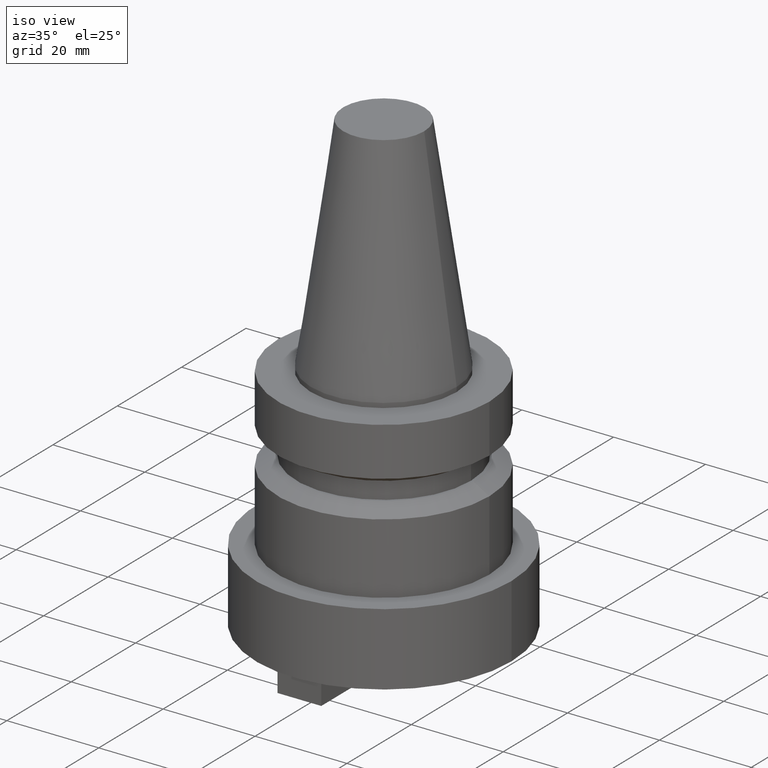
[diagram: clean part render]
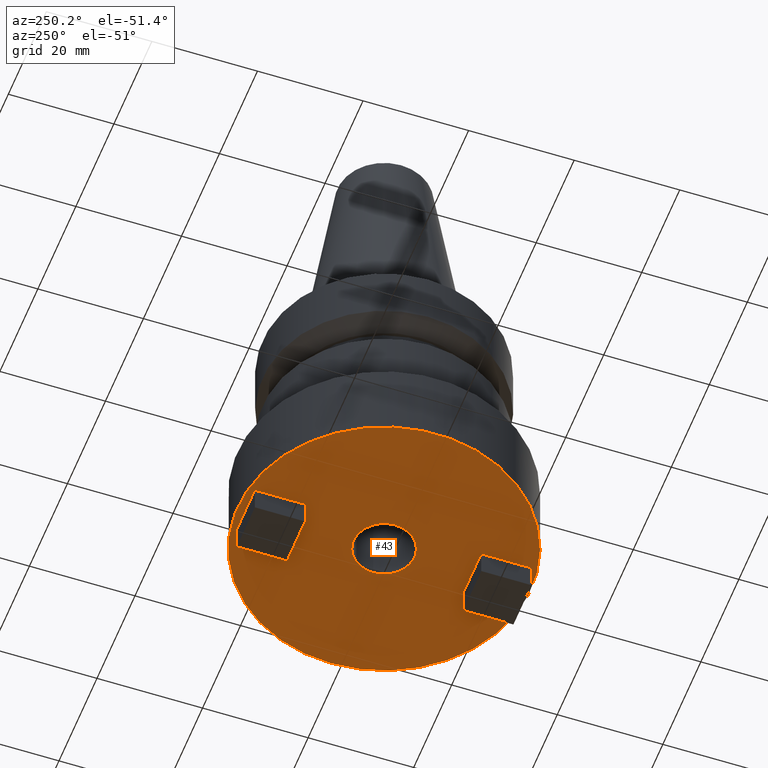
[diagram: tour spotlight — one face highlighted and labeled with its STEP entity id]
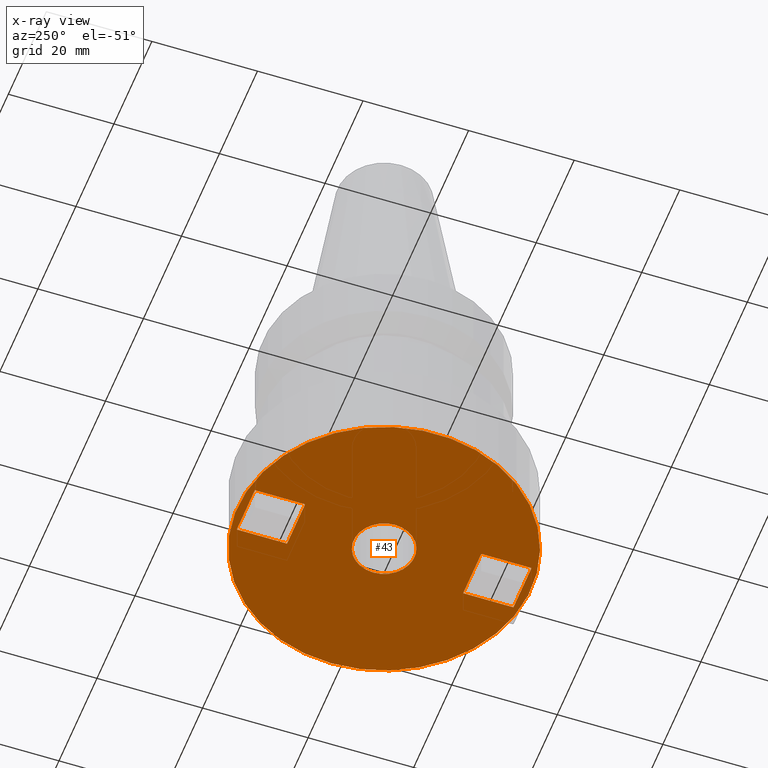
[diagram: x-ray of the same camera — body ghosted, this tour face saturated]
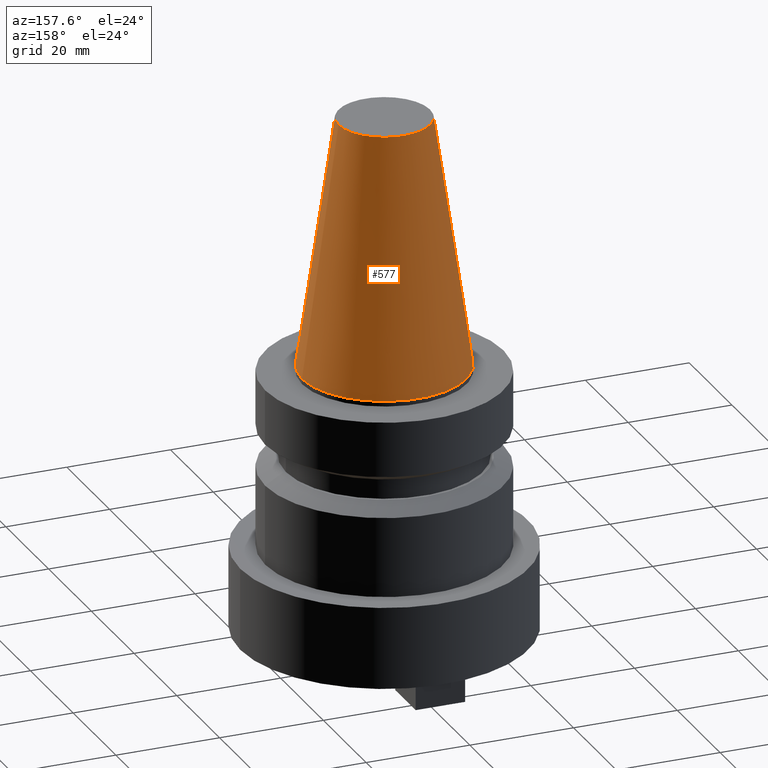
[diagram: tour spotlight — one face highlighted and labeled with its STEP entity id]
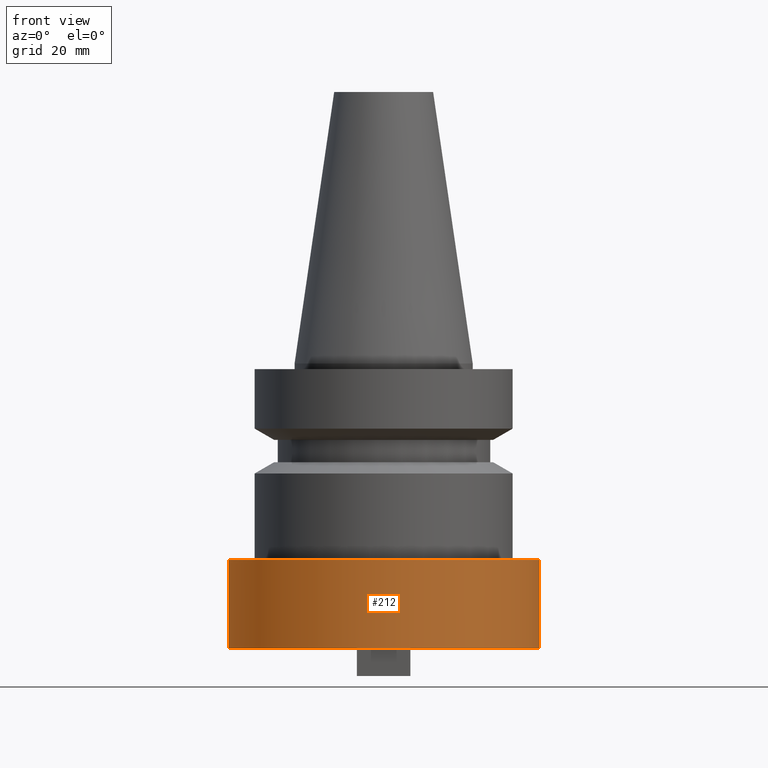
[diagram: tour spotlight — one face highlighted and labeled with its STEP entity id]
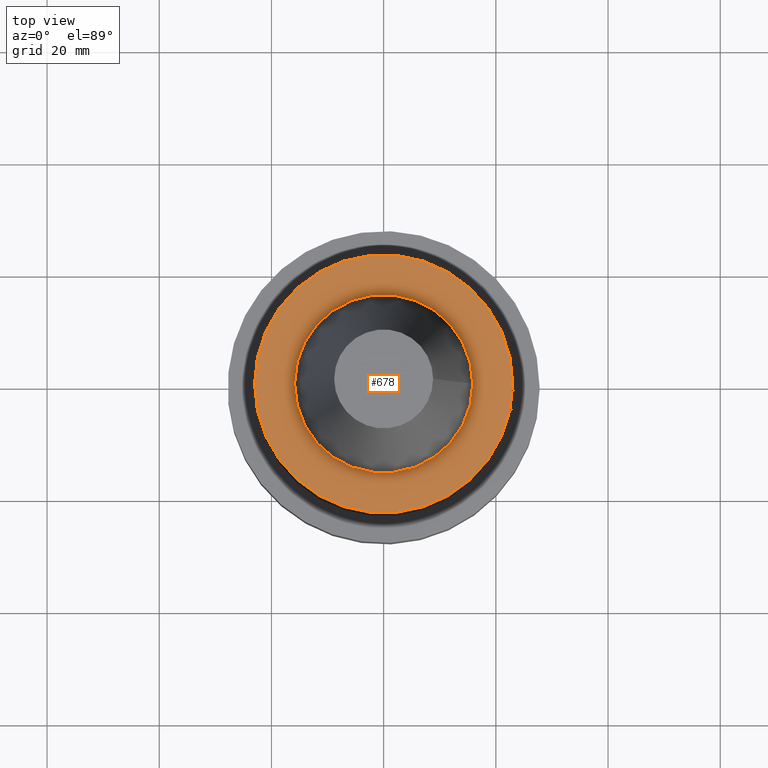
[diagram: tour spotlight — one face highlighted and labeled with its STEP entity id]
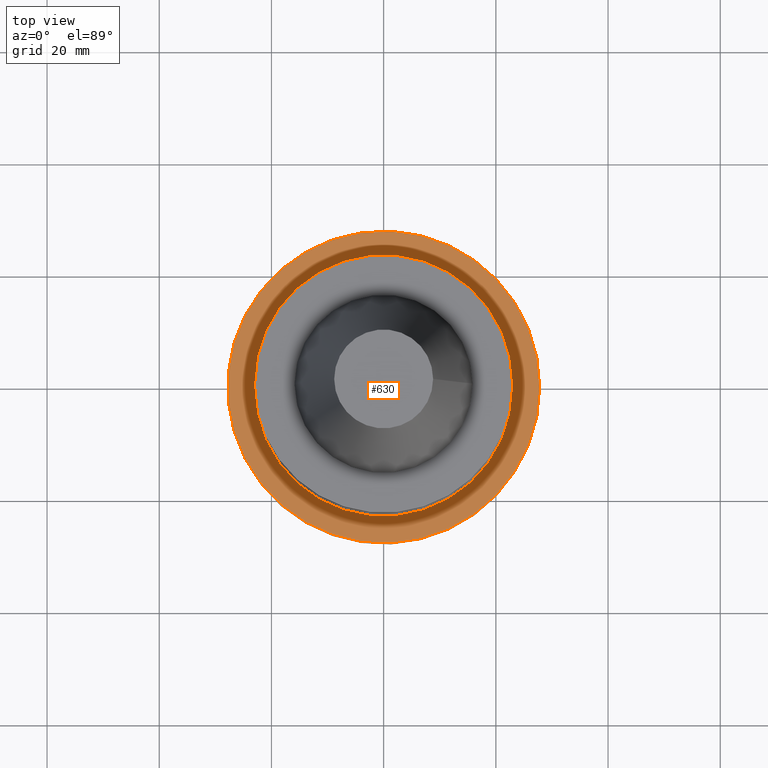
[diagram: tour spotlight — one face highlighted and labeled with its STEP entity id]
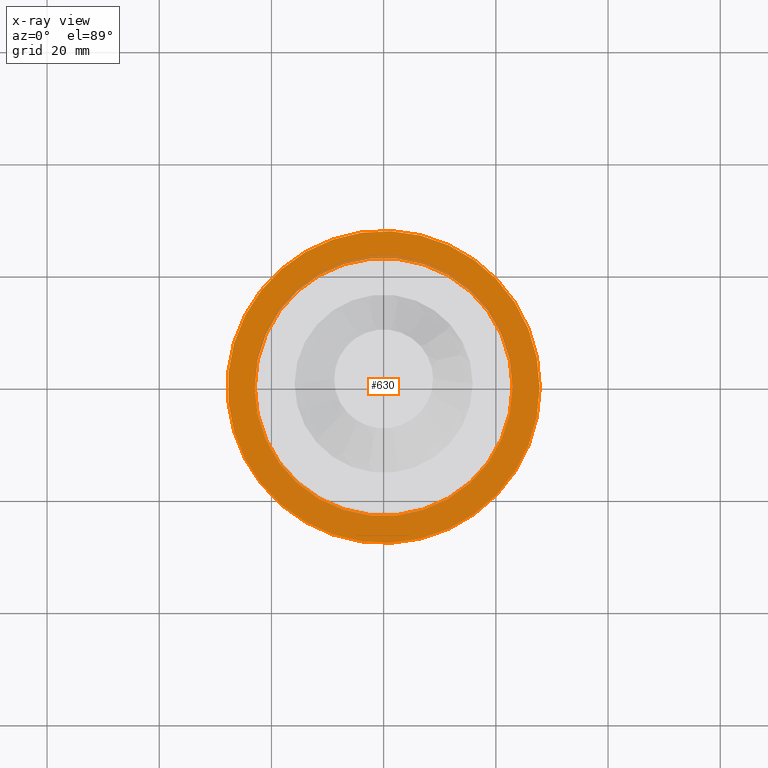
[diagram: x-ray of the same camera — body ghosted, this tour face saturated]
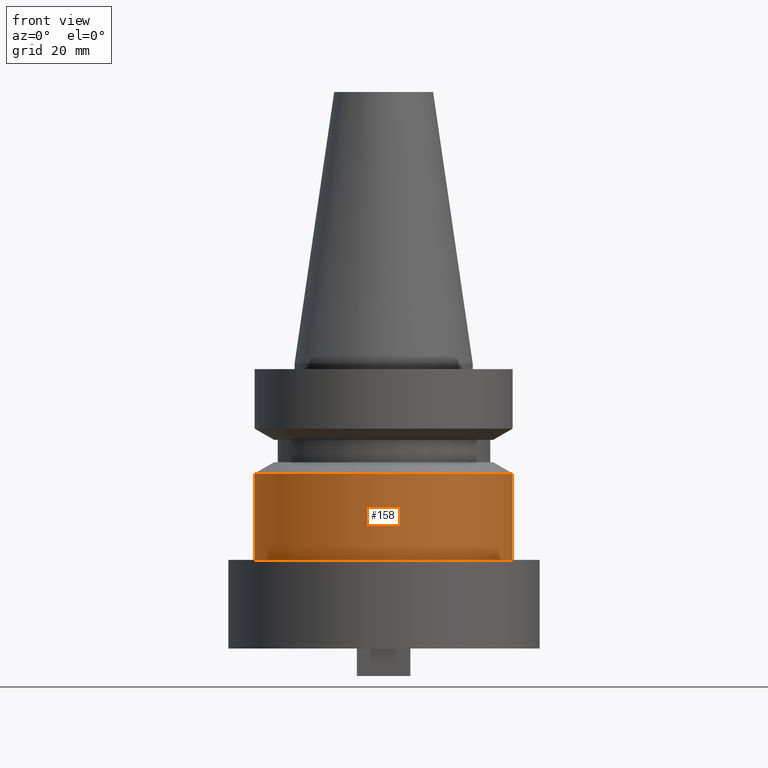
[diagram: tour spotlight — one face highlighted and labeled with its STEP entity id]
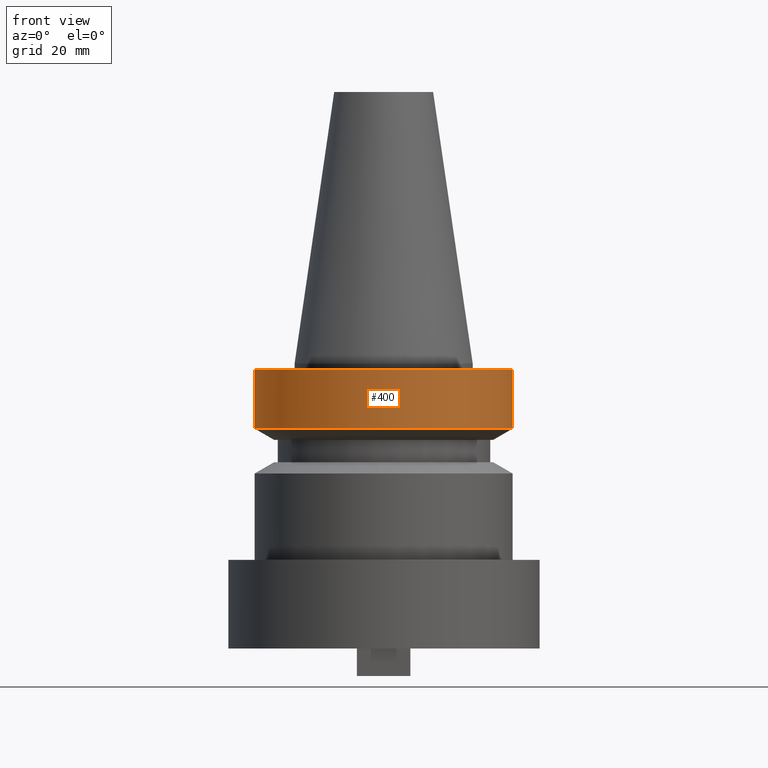
[diagram: tour spotlight — one face highlighted and labeled with its STEP entity id]
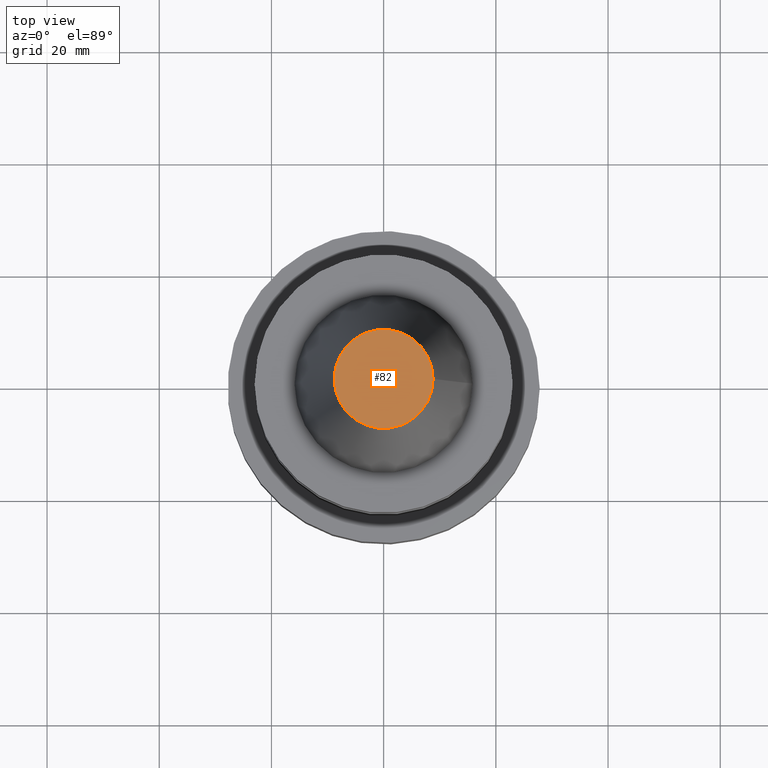
[diagram: tour spotlight — one face highlighted and labeled with its STEP entity id]
A machine part: a face-by-face anatomy tour. The part has 26 B-rep faces; the first image is the clean iso view, then the 8 largest visible faces are spotlighted one at a time (largest first), each with its STEP entity span.

Face 1 — auxiliary view, entity #43. An x-ray twin of the same camera follows (body ghosted, this face saturated) — the face is partly hidden behind the body. In plain terms, the highlighted planar face has unit normal (0, -0, 1).
Definition (entity closure, byte-faithful):
#3 = VERTEX_POINT ( 'NONE', #572 ) ;
#9 = AXIS2_PLACEMENT_3D ( 'NONE', #487, #491, #226 ) ;
#13 = CARTESIAN_POINT ( 'NONE',  ( -4.765000000000003233, 16.67999999999999972, -50.79999999999999716 ) ) ;
#14 = FACE_BOUND ( 'NONE', #294, .T. ) ;
#18 = EDGE_CURVE ( 'NONE', #672, #250, #177, .T. ) ;
#29 = DIRECTION ( 'NONE',  ( -9.101382350350614961E-17, -1.000000000000000000, 0.000000000000000000 ) ) ;
#31 = DIRECTION ( 'NONE',  ( 9.101382350350512656E-17, -1.000000000000000000, 0.000000000000000000 ) ) ;
#43 = ADVANCED_FACE ( 'NONE', ( #14, #430, #168, #165 ), #483, .F. ) ;
#54 = CIRCLE ( 'NONE', #310, 5.764999999999999680 ) ;
#69 = CARTESIAN_POINT ( 'NONE',  ( 4.764999999999993463, 4.336808689942012806E-16, -50.79999999999999716 ) ) ;
#72 = EDGE_CURVE ( 'NONE', #569, #503, #222, .T. ) ;
#74 = CARTESIAN_POINT ( 'NONE',  ( -1.908377851221493419E-14, -26.20999999999997954, -50.79999999999999716 ) ) ;
#78 = CARTESIAN_POINT ( 'NONE',  ( -4.765000000000003233, -26.20999999999997598, -50.79999999999999716 ) ) ;
#95 = CARTESIAN_POINT ( 'NONE',  ( 6.072442304153862371E-15, 16.67999999999999972, -50.79999999999999716 ) ) ;
#105 = CARTESIAN_POINT ( 'NONE',  ( 1.761008268204623874E-13, -16.68000000000003524, -50.79999999999999716 ) ) ;
#112 = DIRECTION ( 'NONE',  ( -1.000000000000000000, -1.055760352640659537E-14, 0.000000000000000000 ) ) ;
#113 = DIRECTION ( 'NONE',  ( -9.101382350350508958E-17, -1.000000000000000000, 0.000000000000000000 ) ) ;
#114 = DIRECTION ( 'NONE',  ( -0.000000000000000000, -0.000000000000000000, 1.000000000000000000 ) ) ;
#137 = VERTEX_POINT ( 'NONE', #149 ) ;
#140 = EDGE_CURVE ( 'NONE', #227, #503, #293, .T. ) ;
#144 = CARTESIAN_POINT ( 'NONE',  ( 4.764999999999985469, -2.168404344971001768E-15, -50.79999999999999716 ) ) ;
#148 = ORIENTED_EDGE ( 'NONE', *, *, #648, .T. ) ;
#149 = CARTESIAN_POINT ( 'NONE',  ( 5.764999999999999680, 0.000000000000000000, -50.79999999999999716 ) ) ;
#165 = FACE_BOUND ( 'NONE', #214, .T. ) ;
#168 = FACE_OUTER_BOUND ( 'NONE', #624, .T. ) ;
#177 = LINE ( 'NONE', #74, #645 ) ;
#184 = VECTOR ( 'NONE', #507, 1000.000000000000000 ) ;
#189 = CARTESIAN_POINT ( 'NONE',  ( -4.765000000000000568, 4.336808689942069012E-16, -50.79999999999999716 ) ) ;
#190 = VERTEX_POINT ( 'NONE', #347 ) ;
#191 = CARTESIAN_POINT ( 'NONE',  ( 4.764999999999996128, -26.20999999999998309, -50.79999999999999716 ) ) ;
#192 = EDGE_CURVE ( 'NONE', #3, #227, #343, .T. ) ;
#207 = VECTOR ( 'NONE', #562, 1000.000000000000000 ) ;
#214 = EDGE_LOOP ( 'NONE', ( #633, #308, #403, #223 ) ) ;
#220 = EDGE_CURVE ( 'NONE', #190, #250, #549, .T. ) ;
#222 = LINE ( 'NONE', #545, #523 ) ;
#223 = ORIENTED_EDGE ( 'NONE', *, *, #72, .T. ) ;
#226 = DIRECTION ( 'NONE',  ( 1.000000000000000000, 0.000000000000000000, 0.000000000000000000 ) ) ;
#227 = VERTEX_POINT ( 'NONE', #557 ) ;
#242 = CARTESIAN_POINT ( 'NONE',  ( 4.764999999999995239, -16.67999999999998906, -50.79999999999999716 ) ) ;
#250 = VERTEX_POINT ( 'NONE', #78 ) ;
#255 = DIRECTION ( 'NONE',  ( -1.000000000000000000, 3.640552940140203583E-16, 0.000000000000000000 ) ) ;
#265 = CARTESIAN_POINT ( 'NONE',  ( 0.000000000000000000, 0.000000000000000000, -50.79999999999999716 ) ) ;
#267 = CARTESIAN_POINT ( 'NONE',  ( 9.541889256107473405E-15, 26.21000000000000085, -50.79999999999999716 ) ) ;
#290 = CARTESIAN_POINT ( 'NONE',  ( 27.80000000000000071, 0.000000000000000000, -50.79999999999999716 ) ) ;
#293 = LINE ( 'NONE', #95, #184 ) ;
#294 = EDGE_LOOP ( 'NONE', ( #348, #615, #449, #338 ) ) ;
#300 = EDGE_CURVE ( 'NONE', #3, #569, #639, .T. ) ;
#302 = VECTOR ( 'NONE', #31, 1000.000000000000000 ) ;
#308 = ORIENTED_EDGE ( 'NONE', *, *, #192, .F. ) ;
#310 = AXIS2_PLACEMENT_3D ( 'NONE', #376, #599, #381 ) ;
#316 = LINE ( 'NONE', #105, #536 ) ;
#320 = CIRCLE ( 'NONE', #335, 27.80000000000000071 ) ;
#321 = CARTESIAN_POINT ( 'NONE',  ( -4.765000000000002345, 26.21000000000000441, -50.79999999999999716 ) ) ;
#335 = AXIS2_PLACEMENT_3D ( 'NONE', #265, #114, #671 ) ;
#338 = ORIENTED_EDGE ( 'NONE', *, *, #556, .F. ) ;
#343 = LINE ( 'NONE', #144, #207 ) ;
#347 = CARTESIAN_POINT ( 'NONE',  ( -4.765000000000002345, -16.68000000000008498, -50.79999999999999716 ) ) ;
#348 = ORIENTED_EDGE ( 'NONE', *, *, #451, .T. ) ;
#360 = EDGE_CURVE ( 'NONE', #395, #395, #320, .T. ) ;
#376 = CARTESIAN_POINT ( 'NONE',  ( 0.000000000000000000, 0.000000000000000000, -50.79999999999999716 ) ) ;
#381 = DIRECTION ( 'NONE',  ( 1.000000000000000000, 0.000000000000000000, 0.000000000000000000 ) ) ;
#392 = LINE ( 'NONE', #69, #302 ) ;
#395 = VERTEX_POINT ( 'NONE', #290 ) ;
#403 = ORIENTED_EDGE ( 'NONE', *, *, #300, .T. ) ;
#425 = DIRECTION ( 'NONE',  ( -1.000000000000000000, 7.281105880280407166E-16, 0.000000000000000000 ) ) ;
#430 = FACE_BOUND ( 'NONE', #550, .T. ) ;
#449 = ORIENTED_EDGE ( 'NONE', *, *, #18, .F. ) ;
#451 = EDGE_CURVE ( 'NONE', #573, #190, #316, .T. ) ;
#483 = PLANE ( 'NONE',  #9 ) ;
#487 = CARTESIAN_POINT ( 'NONE',  ( 0.000000000000000000, 27.80000000000000071, -50.79999999999999716 ) ) ;
#491 = DIRECTION ( 'NONE',  ( 0.000000000000000000, -0.000000000000000000, 1.000000000000000000 ) ) ;
#498 = ORIENTED_EDGE ( 'NONE', *, *, #360, .F. ) ;
#503 = VERTEX_POINT ( 'NONE', #13 ) ;
#507 = DIRECTION ( 'NONE',  ( -1.000000000000000000, 3.640552940140205062E-16, 0.000000000000000000 ) ) ;
#523 = VECTOR ( 'NONE', #113, 1000.000000000000000 ) ;
#536 = VECTOR ( 'NONE', #112, 1000.000000000000000 ) ;
#545 = CARTESIAN_POINT ( 'NONE',  ( -4.765000000000005009, 4.336808689942022666E-16, -50.79999999999999716 ) ) ;
#549 = LINE ( 'NONE', #189, #616 ) ;
#550 = EDGE_LOOP ( 'NONE', ( #148 ) ) ;
#556 = EDGE_CURVE ( 'NONE', #573, #672, #392, .T. ) ;
#557 = CARTESIAN_POINT ( 'NONE',  ( 4.764999999999993463, 16.67999999999999972, -50.79999999999999716 ) ) ;
#562 = DIRECTION ( 'NONE',  ( -4.550691175175254109E-16, -1.000000000000000000, 0.000000000000000000 ) ) ;
#569 = VERTEX_POINT ( 'NONE', #321 ) ;
#572 = CARTESIAN_POINT ( 'NONE',  ( 4.764999999999997904, 26.21000000000000085, -50.79999999999999716 ) ) ;
#573 = VERTEX_POINT ( 'NONE', #242 ) ;
#599 = DIRECTION ( 'NONE',  ( -0.000000000000000000, -0.000000000000000000, 1.000000000000000000 ) ) ;
#615 = ORIENTED_EDGE ( 'NONE', *, *, #220, .T. ) ;
#616 = VECTOR ( 'NONE', #29, 1000.000000000000000 ) ;
#624 = EDGE_LOOP ( 'NONE', ( #498 ) ) ;
#627 = VECTOR ( 'NONE', #255, 1000.000000000000000 ) ;
#633 = ORIENTED_EDGE ( 'NONE', *, *, #140, .F. ) ;
#639 = LINE ( 'NONE', #267, #627 ) ;
#645 = VECTOR ( 'NONE', #425, 1000.000000000000000 ) ;
#648 = EDGE_CURVE ( 'NONE', #137, #137, #54, .T. ) ;
#671 = DIRECTION ( 'NONE',  ( 1.000000000000000000, 0.000000000000000000, 0.000000000000000000 ) ) ;
#672 = VERTEX_POINT ( 'NONE', #191 ) ;

Face 2 — auxiliary view, entity #577. In plain terms, the highlighted conical surface has half-angle 8.297 deg.
Definition (entity closure, byte-faithful):
#25 = CARTESIAN_POINT ( 'NONE',  ( 0.000000000000000000, 0.000000000000000000, 0.000000000000000000 ) ) ;
#66 = FACE_OUTER_BOUND ( 'NONE', #292, .T. ) ;
#79 = ORIENTED_EDGE ( 'NONE', *, *, #166, .F. ) ;
#93 = VERTEX_POINT ( 'NONE', #447 ) ;
#160 = EDGE_CURVE ( 'NONE', #612, #612, #196, .T. ) ;
#166 = EDGE_CURVE ( 'NONE', #93, #93, #366, .T. ) ;
#170 = FACE_BOUND ( 'NONE', #406, .T. ) ;
#172 = AXIS2_PLACEMENT_3D ( 'NONE', #608, #187, #333 ) ;
#187 = DIRECTION ( 'NONE',  ( 0.000000000000000000, 0.000000000000000000, -1.000000000000000000 ) ) ;
#196 = CIRCLE ( 'NONE', #440, 15.87500000000000000 ) ;
#245 = DIRECTION ( 'NONE',  ( 1.000000000000000000, 0.000000000000000000, 0.000000000000000000 ) ) ;
#292 = EDGE_LOOP ( 'NONE', ( #413 ) ) ;
#333 = DIRECTION ( 'NONE',  ( -1.000000000000000000, 0.000000000000000000, 0.000000000000000000 ) ) ;
#353 = CARTESIAN_POINT ( 'NONE',  ( 15.87500000000000000, 0.000000000000000000, 0.000000000000000000 ) ) ;
#366 = CIRCLE ( 'NONE', #534, 8.816600212367498912 ) ;
#396 = DIRECTION ( 'NONE',  ( -0.000000000000000000, -0.000000000000000000, 1.000000000000000000 ) ) ;
#406 = EDGE_LOOP ( 'NONE', ( #79 ) ) ;
#413 = ORIENTED_EDGE ( 'NONE', *, *, #160, .T. ) ;
#440 = AXIS2_PLACEMENT_3D ( 'NONE', #25, #396, #666 ) ;
#447 = CARTESIAN_POINT ( 'NONE',  ( 8.816600212367498912, 0.000000000000000000, 48.39999999999999858 ) ) ;
#466 = CONICAL_SURFACE ( 'NONE', #172, 15.87500000000000000, 0.1448138426689024039 ) ;
#494 = CARTESIAN_POINT ( 'NONE',  ( 0.000000000000000000, 0.000000000000000000, 48.39999999999999858 ) ) ;
#534 = AXIS2_PLACEMENT_3D ( 'NONE', #494, #553, #245 ) ;
#553 = DIRECTION ( 'NONE',  ( -0.000000000000000000, -0.000000000000000000, 1.000000000000000000 ) ) ;
#577 = ADVANCED_FACE ( 'NONE', ( #170, #66 ), #466, .T. ) ;
#608 = CARTESIAN_POINT ( 'NONE',  ( 0.000000000000000000, 0.000000000000000000, 0.000000000000000000 ) ) ;
#612 = VERTEX_POINT ( 'NONE', #353 ) ;
#666 = DIRECTION ( 'NONE',  ( 1.000000000000000000, 0.000000000000000000, 0.000000000000000000 ) ) ;

Face 3 — front view, entity #212. In plain terms, the highlighted cylindrical surface (bore or boss wall) has radius 27.8 mm, axis along (-0, -0, 1).
Definition (entity closure, byte-faithful):
#109 = AXIS2_PLACEMENT_3D ( 'NONE', #431, #126, #568 ) ;
#114 = DIRECTION ( 'NONE',  ( -0.000000000000000000, -0.000000000000000000, 1.000000000000000000 ) ) ;
#126 = DIRECTION ( 'NONE',  ( -0.000000000000000000, -0.000000000000000000, 1.000000000000000000 ) ) ;
#130 = EDGE_LOOP ( 'NONE', ( #204 ) ) ;
#179 = CYLINDRICAL_SURFACE ( 'NONE', #209, 27.79999999999999716 ) ;
#198 = CIRCLE ( 'NONE', #109, 27.79999999999999716 ) ;
#204 = ORIENTED_EDGE ( 'NONE', *, *, #360, .T. ) ;
#205 = CARTESIAN_POINT ( 'NONE',  ( 27.79999999999999716, 0.000000000000000000, -34.99999999999999289 ) ) ;
#209 = AXIS2_PLACEMENT_3D ( 'NONE', #252, #454, #617 ) ;
#212 = ADVANCED_FACE ( 'NONE', ( #236, #350 ), #179, .T. ) ;
#236 = FACE_OUTER_BOUND ( 'NONE', #674, .T. ) ;
#252 = CARTESIAN_POINT ( 'NONE',  ( 0.000000000000000000, 0.000000000000000000, 0.000000000000000000 ) ) ;
#259 = ORIENTED_EDGE ( 'NONE', *, *, #658, .F. ) ;
#265 = CARTESIAN_POINT ( 'NONE',  ( 0.000000000000000000, 0.000000000000000000, -50.79999999999999716 ) ) ;
#290 = CARTESIAN_POINT ( 'NONE',  ( 27.80000000000000071, 0.000000000000000000, -50.79999999999999716 ) ) ;
#320 = CIRCLE ( 'NONE', #335, 27.80000000000000071 ) ;
#335 = AXIS2_PLACEMENT_3D ( 'NONE', #265, #114, #671 ) ;
#350 = FACE_OUTER_BOUND ( 'NONE', #130, .T. ) ;
#360 = EDGE_CURVE ( 'NONE', #395, #395, #320, .T. ) ;
#395 = VERTEX_POINT ( 'NONE', #290 ) ;
#431 = CARTESIAN_POINT ( 'NONE',  ( 0.000000000000000000, 0.000000000000000000, -34.99999999999999289 ) ) ;
#454 = DIRECTION ( 'NONE',  ( -0.000000000000000000, -0.000000000000000000, 1.000000000000000000 ) ) ;
#568 = DIRECTION ( 'NONE',  ( 1.000000000000000000, 0.000000000000000000, 0.000000000000000000 ) ) ;
#617 = DIRECTION ( 'NONE',  ( 1.000000000000000000, 0.000000000000000000, 0.000000000000000000 ) ) ;
#619 = VERTEX_POINT ( 'NONE', #205 ) ;
#658 = EDGE_CURVE ( 'NONE', #619, #619, #198, .T. ) ;
#671 = DIRECTION ( 'NONE',  ( 1.000000000000000000, 0.000000000000000000, 0.000000000000000000 ) ) ;
#674 = EDGE_LOOP ( 'NONE', ( #259 ) ) ;

Face 4 — top view, entity #678. In plain terms, the highlighted planar face has unit normal (0, 0, -1).
Definition (entity closure, byte-faithful):
#33 = AXIS2_PLACEMENT_3D ( 'NONE', #39, #445, #85 ) ;
#39 = CARTESIAN_POINT ( 'NONE',  ( 0.000000000000000000, 0.000000000000000000, -1.000000000000000888 ) ) ;
#41 = CARTESIAN_POINT ( 'NONE',  ( 22.99999999999999645, 0.000000000000000000, -1.000000000000000888 ) ) ;
#80 = DIRECTION ( 'NONE',  ( -0.000000000000000000, -0.000000000000000000, 1.000000000000000000 ) ) ;
#84 = DIRECTION ( 'NONE',  ( 0.000000000000000000, 0.000000000000000000, -1.000000000000000000 ) ) ;
#85 = DIRECTION ( 'NONE',  ( 1.000000000000000000, 0.000000000000000000, 0.000000000000000000 ) ) ;
#91 = ORIENTED_EDGE ( 'NONE', *, *, #526, .T. ) ;
#141 = ORIENTED_EDGE ( 'NONE', *, *, #176, .F. ) ;
#146 = PLANE ( 'NONE',  #185 ) ;
#176 = EDGE_CURVE ( 'NONE', #296, #296, #319, .T. ) ;
#178 = DIRECTION ( 'NONE',  ( 1.000000000000000000, 0.000000000000000000, 0.000000000000000000 ) ) ;
#185 = AXIS2_PLACEMENT_3D ( 'NONE', #509, #84, #559 ) ;
#218 = AXIS2_PLACEMENT_3D ( 'NONE', #423, #80, #178 ) ;
#248 = FACE_OUTER_BOUND ( 'NONE', #410, .T. ) ;
#296 = VERTEX_POINT ( 'NONE', #565 ) ;
#319 = CIRCLE ( 'NONE', #33, 15.87500000000000000 ) ;
#410 = EDGE_LOOP ( 'NONE', ( #91 ) ) ;
#423 = CARTESIAN_POINT ( 'NONE',  ( 0.000000000000000000, 0.000000000000000000, -1.000000000000000888 ) ) ;
#445 = DIRECTION ( 'NONE',  ( -0.000000000000000000, -0.000000000000000000, 1.000000000000000000 ) ) ;
#508 = EDGE_LOOP ( 'NONE', ( #141 ) ) ;
#509 = CARTESIAN_POINT ( 'NONE',  ( 0.000000000000000000, 22.99999999999999645, -0.9999999999999995559 ) ) ;
#524 = CIRCLE ( 'NONE', #218, 22.99999999999999645 ) ;
#526 = EDGE_CURVE ( 'NONE', #623, #623, #524, .T. ) ;
#559 = DIRECTION ( 'NONE',  ( -1.000000000000000000, 0.000000000000000000, -0.000000000000000000 ) ) ;
#565 = CARTESIAN_POINT ( 'NONE',  ( 15.87500000000000000, 0.000000000000000000, -1.000000000000000888 ) ) ;
#623 = VERTEX_POINT ( 'NONE', #41 ) ;
#676 = FACE_BOUND ( 'NONE', #508, .T. ) ;
#678 = ADVANCED_FACE ( 'NONE', ( #676, #248 ), #146, .F. ) ;

Face 5 — top view, entity #630. An x-ray twin of the same camera follows (body ghosted, this face saturated) — the face is partly hidden behind the body. In plain terms, the highlighted planar face has unit normal (0, 0, -1).
Definition (entity closure, byte-faithful):
#1 = AXIS2_PLACEMENT_3D ( 'NONE', #606, #81, #288 ) ;
#15 = FACE_BOUND ( 'NONE', #342, .T. ) ;
#46 = VERTEX_POINT ( 'NONE', #258 ) ;
#63 = CIRCLE ( 'NONE', #1, 23.00000000000000000 ) ;
#81 = DIRECTION ( 'NONE',  ( -0.000000000000000000, -0.000000000000000000, 1.000000000000000000 ) ) ;
#109 = AXIS2_PLACEMENT_3D ( 'NONE', #431, #126, #568 ) ;
#124 = DIRECTION ( 'NONE',  ( -1.000000000000000000, 0.000000000000000000, -0.000000000000000000 ) ) ;
#126 = DIRECTION ( 'NONE',  ( -0.000000000000000000, -0.000000000000000000, 1.000000000000000000 ) ) ;
#181 = FACE_OUTER_BOUND ( 'NONE', #455, .T. ) ;
#198 = CIRCLE ( 'NONE', #109, 27.79999999999999716 ) ;
#205 = CARTESIAN_POINT ( 'NONE',  ( 27.79999999999999716, 0.000000000000000000, -34.99999999999999289 ) ) ;
#241 = ORIENTED_EDGE ( 'NONE', *, *, #658, .T. ) ;
#258 = CARTESIAN_POINT ( 'NONE',  ( 23.00000000000000000, 0.000000000000000000, -34.99999999999999289 ) ) ;
#269 = ORIENTED_EDGE ( 'NONE', *, *, #283, .F. ) ;
#283 = EDGE_CURVE ( 'NONE', #46, #46, #63, .T. ) ;
#288 = DIRECTION ( 'NONE',  ( 1.000000000000000000, 0.000000000000000000, 0.000000000000000000 ) ) ;
#342 = EDGE_LOOP ( 'NONE', ( #269 ) ) ;
#384 = CARTESIAN_POINT ( 'NONE',  ( 0.000000000000000000, 27.79999999999999716, -34.99999999999999289 ) ) ;
#401 = AXIS2_PLACEMENT_3D ( 'NONE', #384, #485, #124 ) ;
#431 = CARTESIAN_POINT ( 'NONE',  ( 0.000000000000000000, 0.000000000000000000, -34.99999999999999289 ) ) ;
#455 = EDGE_LOOP ( 'NONE', ( #241 ) ) ;
#485 = DIRECTION ( 'NONE',  ( 0.000000000000000000, 0.000000000000000000, -1.000000000000000000 ) ) ;
#568 = DIRECTION ( 'NONE',  ( 1.000000000000000000, 0.000000000000000000, 0.000000000000000000 ) ) ;
#603 = PLANE ( 'NONE',  #401 ) ;
#606 = CARTESIAN_POINT ( 'NONE',  ( 0.000000000000000000, 0.000000000000000000, -34.99999999999999289 ) ) ;
#619 = VERTEX_POINT ( 'NONE', #205 ) ;
#630 = ADVANCED_FACE ( 'NONE', ( #15, #181 ), #603, .F. ) ;
#658 = EDGE_CURVE ( 'NONE', #619, #619, #198, .T. ) ;

Face 6 — front view, entity #158. In plain terms, the highlighted cylindrical surface (bore or boss wall) has radius 23 mm, axis along (-0, -0, 1).
Definition (entity closure, byte-faithful):
#1 = AXIS2_PLACEMENT_3D ( 'NONE', #606, #81, #288 ) ;
#46 = VERTEX_POINT ( 'NONE', #258 ) ;
#60 = EDGE_CURVE ( 'NONE', #512, #512, #128, .T. ) ;
#63 = CIRCLE ( 'NONE', #1, 23.00000000000000000 ) ;
#81 = DIRECTION ( 'NONE',  ( -0.000000000000000000, -0.000000000000000000, 1.000000000000000000 ) ) ;
#128 = CIRCLE ( 'NONE', #476, 22.99999999999999645 ) ;
#133 = FACE_OUTER_BOUND ( 'NONE', #210, .T. ) ;
#151 = AXIS2_PLACEMENT_3D ( 'NONE', #613, #610, #600 ) ;
#158 = ADVANCED_FACE ( 'NONE', ( #284, #133 ), #297, .T. ) ;
#210 = EDGE_LOOP ( 'NONE', ( #426 ) ) ;
#258 = CARTESIAN_POINT ( 'NONE',  ( 23.00000000000000000, 0.000000000000000000, -34.99999999999999289 ) ) ;
#283 = EDGE_CURVE ( 'NONE', #46, #46, #63, .T. ) ;
#284 = FACE_OUTER_BOUND ( 'NONE', #519, .T. ) ;
#288 = DIRECTION ( 'NONE',  ( 1.000000000000000000, 0.000000000000000000, 0.000000000000000000 ) ) ;
#297 = CYLINDRICAL_SURFACE ( 'NONE', #151, 22.99999999999999289 ) ;
#398 = CARTESIAN_POINT ( 'NONE',  ( 22.99999999999999645, 0.000000000000000000, -19.60014200631680836 ) ) ;
#426 = ORIENTED_EDGE ( 'NONE', *, *, #283, .T. ) ;
#476 = AXIS2_PLACEMENT_3D ( 'NONE', #531, #543, #480 ) ;
#480 = DIRECTION ( 'NONE',  ( 1.000000000000000000, 0.000000000000000000, 0.000000000000000000 ) ) ;
#512 = VERTEX_POINT ( 'NONE', #398 ) ;
#519 = EDGE_LOOP ( 'NONE', ( #576 ) ) ;
#531 = CARTESIAN_POINT ( 'NONE',  ( 0.000000000000000000, 0.000000000000000000, -19.60014200631680836 ) ) ;
#543 = DIRECTION ( 'NONE',  ( -0.000000000000000000, -0.000000000000000000, 1.000000000000000000 ) ) ;
#576 = ORIENTED_EDGE ( 'NONE', *, *, #60, .F. ) ;
#600 = DIRECTION ( 'NONE',  ( 1.000000000000000000, 0.000000000000000000, 0.000000000000000000 ) ) ;
#606 = CARTESIAN_POINT ( 'NONE',  ( 0.000000000000000000, 0.000000000000000000, -34.99999999999999289 ) ) ;
#610 = DIRECTION ( 'NONE',  ( -0.000000000000000000, -0.000000000000000000, 1.000000000000000000 ) ) ;
#613 = CARTESIAN_POINT ( 'NONE',  ( 0.000000000000000000, 0.000000000000000000, 48.39999999999998437 ) ) ;

Face 7 — front view, entity #400. In plain terms, the highlighted cylindrical surface (bore or boss wall) has radius 23 mm, axis along (-0, -0, 1).
Definition (entity closure, byte-faithful):
#7 = EDGE_LOOP ( 'NONE', ( #525 ) ) ;
#35 = AXIS2_PLACEMENT_3D ( 'NONE', #634, #167, #62 ) ;
#41 = CARTESIAN_POINT ( 'NONE',  ( 22.99999999999999645, 0.000000000000000000, -1.000000000000000888 ) ) ;
#62 = DIRECTION ( 'NONE',  ( 1.000000000000000000, 0.000000000000000000, 0.000000000000000000 ) ) ;
#80 = DIRECTION ( 'NONE',  ( -0.000000000000000000, -0.000000000000000000, 1.000000000000000000 ) ) ;
#108 = DIRECTION ( 'NONE',  ( 1.000000000000000000, 0.000000000000000000, 0.000000000000000000 ) ) ;
#147 = FACE_OUTER_BOUND ( 'NONE', #194, .T. ) ;
#153 = CIRCLE ( 'NONE', #35, 23.00000000000000355 ) ;
#167 = DIRECTION ( 'NONE',  ( -0.000000000000000000, -0.000000000000000000, 1.000000000000000000 ) ) ;
#178 = DIRECTION ( 'NONE',  ( 1.000000000000000000, 0.000000000000000000, 0.000000000000000000 ) ) ;
#194 = EDGE_LOOP ( 'NONE', ( #657 ) ) ;
#218 = AXIS2_PLACEMENT_3D ( 'NONE', #423, #80, #178 ) ;
#345 = CARTESIAN_POINT ( 'NONE',  ( 23.00000000000000355, 0.000000000000000000, -11.60014200631680126 ) ) ;
#352 = EDGE_CURVE ( 'NONE', #404, #404, #153, .T. ) ;
#362 = CYLINDRICAL_SURFACE ( 'NONE', #561, 23.00000000000000000 ) ;
#368 = CARTESIAN_POINT ( 'NONE',  ( 0.000000000000000000, 0.000000000000000000, 48.39999999999998437 ) ) ;
#400 = ADVANCED_FACE ( 'NONE', ( #147, #578 ), #362, .T. ) ;
#404 = VERTEX_POINT ( 'NONE', #345 ) ;
#423 = CARTESIAN_POINT ( 'NONE',  ( 0.000000000000000000, 0.000000000000000000, -1.000000000000000888 ) ) ;
#524 = CIRCLE ( 'NONE', #218, 22.99999999999999645 ) ;
#525 = ORIENTED_EDGE ( 'NONE', *, *, #352, .T. ) ;
#526 = EDGE_CURVE ( 'NONE', #623, #623, #524, .T. ) ;
#561 = AXIS2_PLACEMENT_3D ( 'NONE', #368, #586, #108 ) ;
#578 = FACE_OUTER_BOUND ( 'NONE', #7, .T. ) ;
#586 = DIRECTION ( 'NONE',  ( -0.000000000000000000, -0.000000000000000000, 1.000000000000000000 ) ) ;
#623 = VERTEX_POINT ( 'NONE', #41 ) ;
#634 = CARTESIAN_POINT ( 'NONE',  ( 0.000000000000000000, 0.000000000000000000, -11.60014200631680126 ) ) ;
#657 = ORIENTED_EDGE ( 'NONE', *, *, #526, .F. ) ;

Face 8 — top view, entity #82. In plain terms, the highlighted planar face has unit normal (0, 0, -1).
Definition (entity closure, byte-faithful):
#51 = ORIENTED_EDGE ( 'NONE', *, *, #166, .T. ) ;
#82 = ADVANCED_FACE ( 'NONE', ( #649 ), #275, .F. ) ;
#93 = VERTEX_POINT ( 'NONE', #447 ) ;
#166 = EDGE_CURVE ( 'NONE', #93, #93, #366, .T. ) ;
#173 = DIRECTION ( 'NONE',  ( -1.000000000000000000, 0.000000000000000000, -0.000000000000000000 ) ) ;
#245 = DIRECTION ( 'NONE',  ( 1.000000000000000000, 0.000000000000000000, 0.000000000000000000 ) ) ;
#275 = PLANE ( 'NONE',  #309 ) ;
#309 = AXIS2_PLACEMENT_3D ( 'NONE', #421, #644, #173 ) ;
#366 = CIRCLE ( 'NONE', #534, 8.816600212367498912 ) ;
#421 = CARTESIAN_POINT ( 'NONE',  ( 0.000000000000000000, 8.816600212367498912, 48.39999999999999147 ) ) ;
#447 = CARTESIAN_POINT ( 'NONE',  ( 8.816600212367498912, 0.000000000000000000, 48.39999999999999858 ) ) ;
#494 = CARTESIAN_POINT ( 'NONE',  ( 0.000000000000000000, 0.000000000000000000, 48.39999999999999858 ) ) ;
#534 = AXIS2_PLACEMENT_3D ( 'NONE', #494, #553, #245 ) ;
#553 = DIRECTION ( 'NONE',  ( -0.000000000000000000, -0.000000000000000000, 1.000000000000000000 ) ) ;
#601 = EDGE_LOOP ( 'NONE', ( #51 ) ) ;
#644 = DIRECTION ( 'NONE',  ( 0.000000000000000000, 0.000000000000000000, -1.000000000000000000 ) ) ;
#649 = FACE_OUTER_BOUND ( 'NONE', #601, .T. ) ;